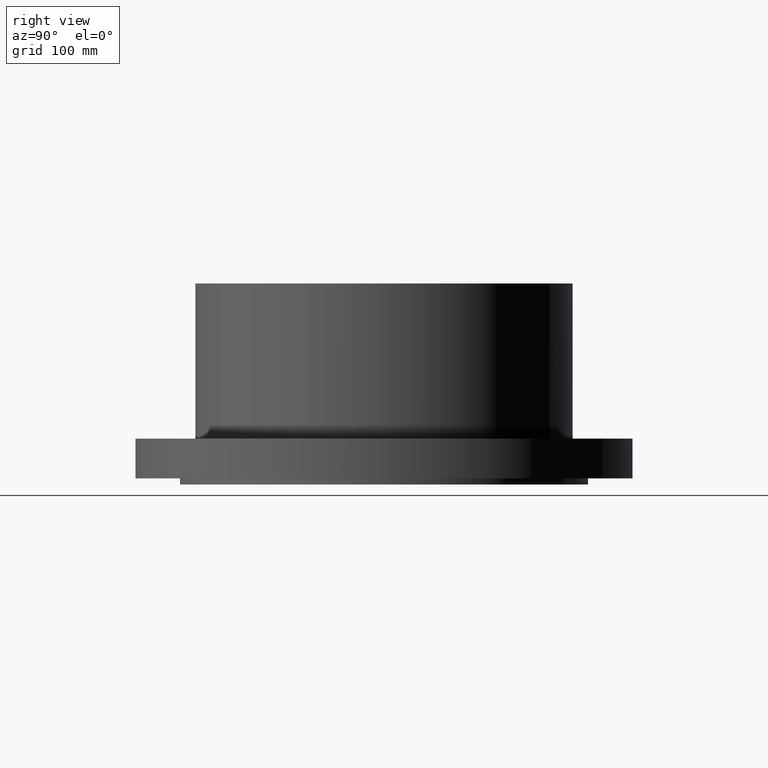
[diagram: clean part render]
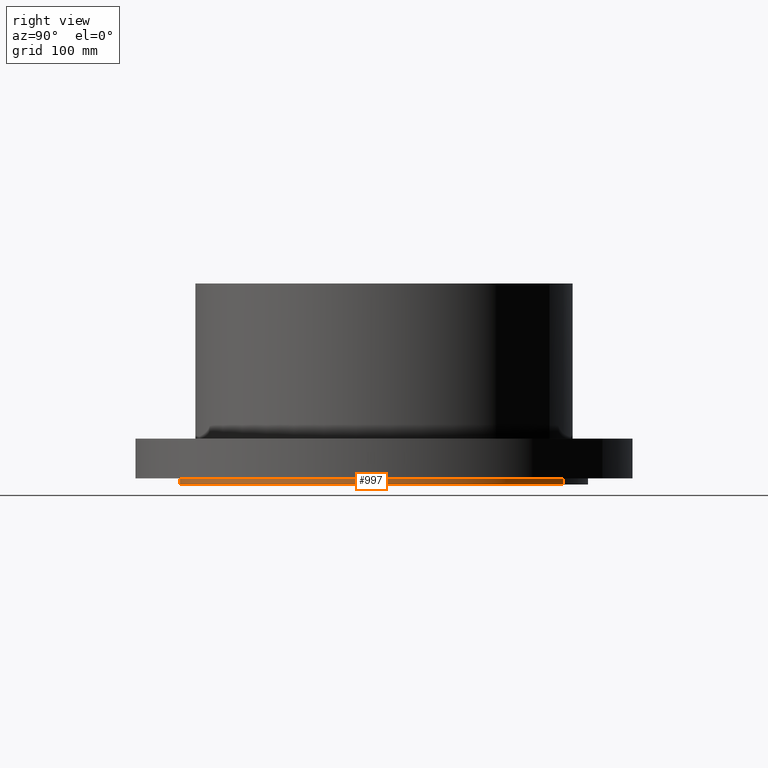
[diagram: same view with one face highlighted and labeled with its STEP entity id]
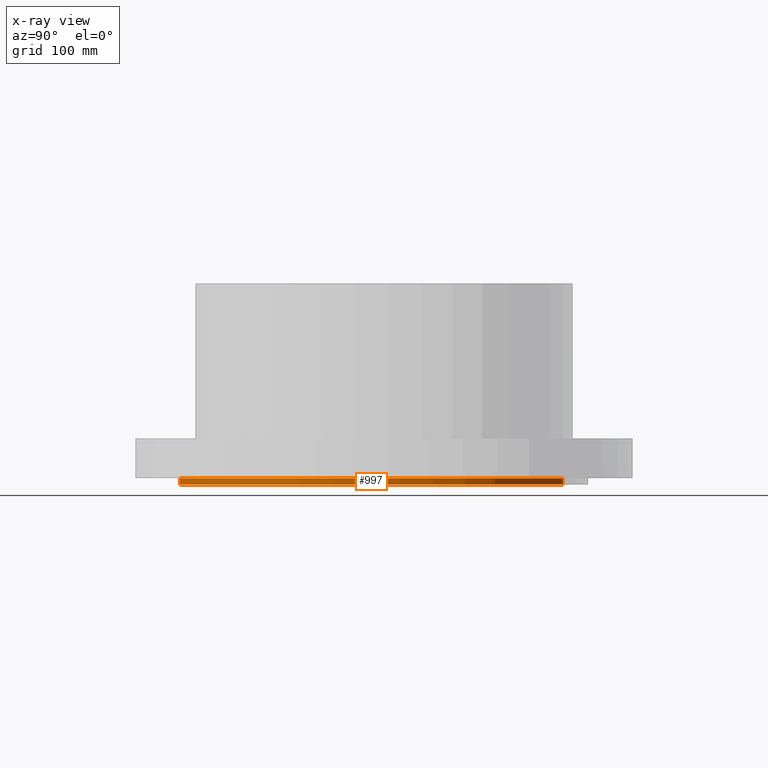
[diagram: x-ray of the same camera — body ghosted, the highlighted face saturated]
A machine part, right view. The second image highlights one B-rep face of the part: STEP entity #997.
The next image is the same camera in x-ray: the body ghosted, the highlighted face saturated — about 0% of this face is hidden behind the body in this view.
In plain terms, the highlighted cylindrical surface (partial cylindrical patch) has radius 317.5 mm, axis along (0, 0, -1).
Its self-contained STEP definition (entity closure, byte-faithful):
#109=AXIS2_PLACEMENT_3D('Circle Axis2P3D',#107,#108,$) ;
#957=AXIS2_PLACEMENT_3D('Circle Axis2P3D',#955,#956,$) ;
#972=AXIS2_PLACEMENT_3D('Cylinder Axis2P3D',#969,#970,#971) ;
#107=CARTESIAN_POINT('Axis2P3D Location',(0.,0.,0.)) ;
#111=CARTESIAN_POINT('Vertex',(5.99281923258,10.9697820237,1.1189649382E-015)) ;
#113=CARTESIAN_POINT('Vertex',(-5.99281923258,-10.9697820237,1.1189649382E-015)) ;
#950=CARTESIAN_POINT('Vertex',(-5.99281923258,-10.9697820237,-0.375000000001)) ;
#952=CARTESIAN_POINT('Vertex',(5.99281923258,10.9697820237,-0.375000000001)) ;
#955=CARTESIAN_POINT('Axis2P3D Location',(0.,0.,-0.375000000001)) ;
#969=CARTESIAN_POINT('Axis2P3D Location',(0.,0.,5.78125000002)) ;
#974=CARTESIAN_POINT('Line Origine',(-5.99281923258,-10.9697820237,-0.187500000001)) ;
#979=CARTESIAN_POINT('Line Origine',(5.99281923258,10.9697820237,-0.187500000001)) ;
#108=DIRECTION('Axis2P3D Direction',(0.,0.,-0.0393700787402)) ;
#956=DIRECTION('Axis2P3D Direction',(0.,0.,-0.0393700787402)) ;
#970=DIRECTION('Axis2P3D Direction',(0.,0.,-0.0393700787402)) ;
#971=DIRECTION('Axis2P3D XDirection',(0.0188750212049,0.0345504945626,0.)) ;
#975=DIRECTION('Vector Direction',(0.,0.,-0.0393700787402)) ;
#980=DIRECTION('Vector Direction',(0.,0.,-0.0393700787402)) ;
#976=VECTOR('Line Direction',#975,0.0393700787402) ;
#981=VECTOR('Line Direction',#980,0.0393700787402) ;
#992=ORIENTED_EDGE('',*,*,#959,.F.) ;
#993=ORIENTED_EDGE('',*,*,#983,.T.) ;
#994=ORIENTED_EDGE('',*,*,#115,.T.) ;
#995=ORIENTED_EDGE('',*,*,#978,.F.) ;
#997=ADVANCED_FACE('PartBody',(#996),#973,.T.) ;
#110=CIRCLE('generated circle',#109,12.5000000001) ;
#958=CIRCLE('generated circle',#957,12.5000000001) ;
#973=CYLINDRICAL_SURFACE('generated cylinder',#972,12.5000000001) ;
#115=EDGE_CURVE('',#112,#114,#110,.T.) ;
#959=EDGE_CURVE('',#953,#951,#958,.T.) ;
#978=EDGE_CURVE('',#951,#114,#977,.F.) ;
#983=EDGE_CURVE('',#953,#112,#982,.F.) ;
#991=EDGE_LOOP('',(#992,#993,#994,#995)) ;
#996=FACE_OUTER_BOUND('',#991,.T.) ;
#977=LINE('Line',#974,#976) ;
#982=LINE('Line',#979,#981) ;
#112=VERTEX_POINT('',#111) ;
#114=VERTEX_POINT('',#113) ;
#951=VERTEX_POINT('',#950) ;
#953=VERTEX_POINT('',#952) ;